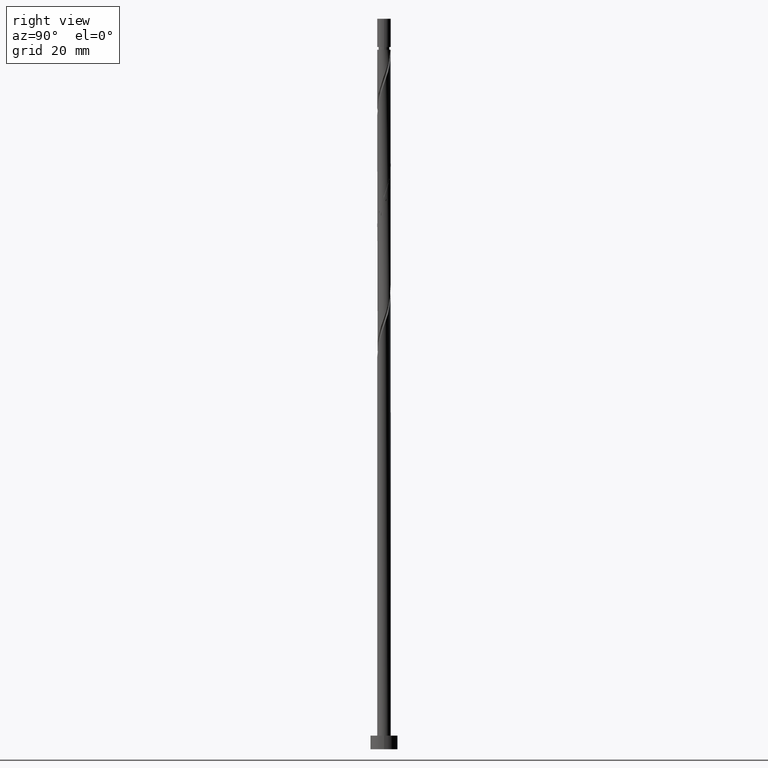
[diagram: clean part render]
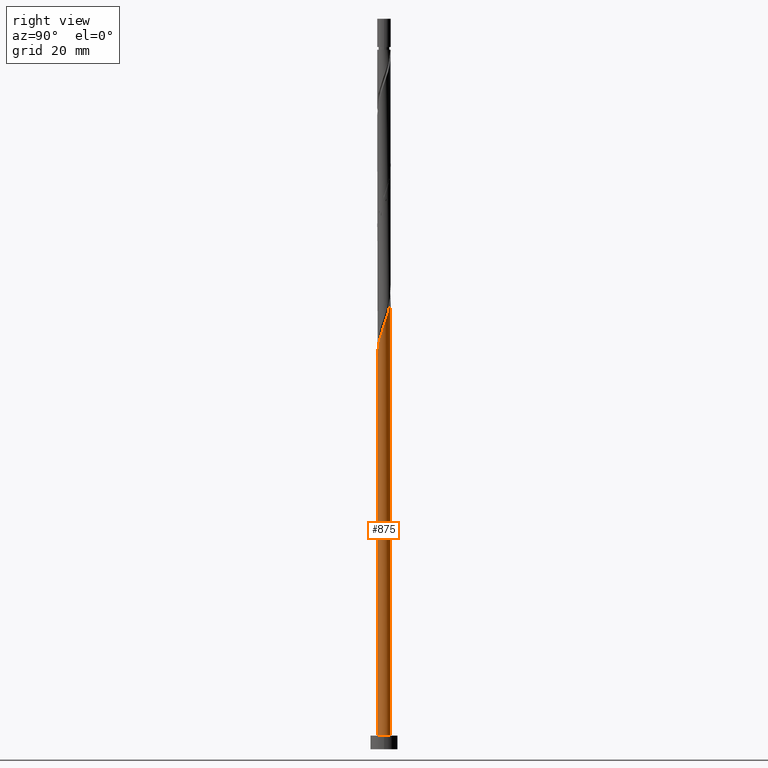
[diagram: same view with one face highlighted and labeled with its STEP entity id]
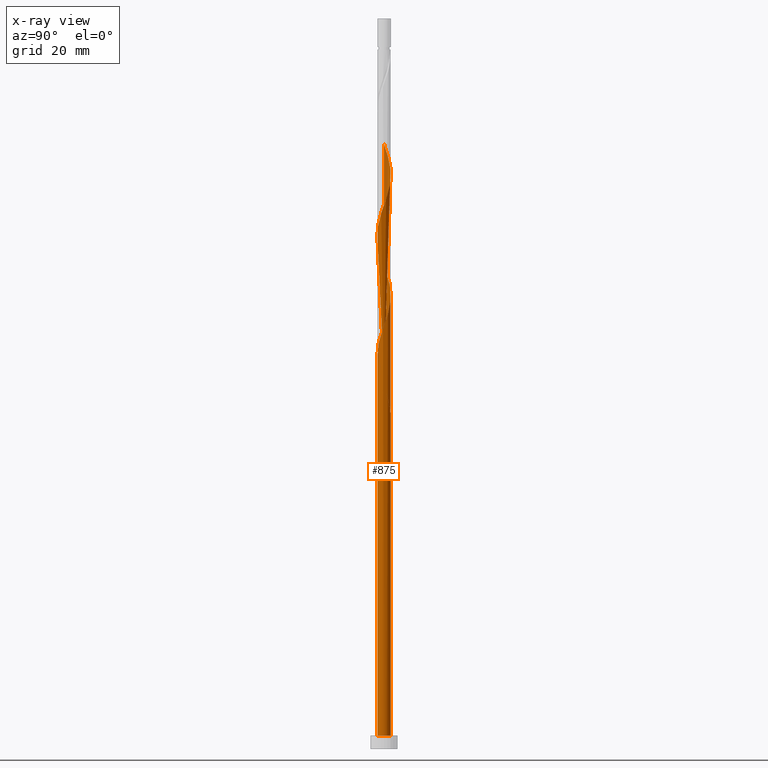
[diagram: x-ray of the same camera — body ghosted, the highlighted face saturated]
A machine part, right view. The second image highlights one B-rep face of the part: STEP entity #875.
The next image is the same camera in x-ray: the body ghosted, the highlighted face saturated — about 0% of this face is hidden behind the body in this view.
In plain terms, the highlighted cylindrical surface (bore or boss wall) has radius 1.5 mm, axis along (-0, -0, -1).
Its self-contained STEP definition (entity closure, byte-faithful):
#17 = EDGE_CURVE ( 'NONE', #938, #1126, #136, .T. ) ;
#25 = CIRCLE ( 'NONE', #214, 1.500000000000000222 ) ;
#33 = DIRECTION ( 'NONE',  ( -1.000000000000000000, 0.000000000000000000, 0.000000000000000000 ) ) ;
#37 = ORIENTED_EDGE ( 'NONE', *, *, #1473, .F. ) ;
#44 = VERTEX_POINT ( 'NONE', #1340 ) ;
#58 = VERTEX_POINT ( 'NONE', #495 ) ;
#60 = CARTESIAN_POINT ( 'NONE',  ( -1.086320624467308038, -1.056607754070166383, 109.9348185488732810 ) ) ;
#61 = CARTESIAN_POINT ( 'NONE',  ( -1.500000000000002887, 0.1717933910776829887, 79.50849502569199956 ) ) ;
#69 = CARTESIAN_POINT ( 'NONE',  ( -0.7446362021362263883, -1.319859602977673019, 111.1469397609944991 ) ) ;
#70 = CARTESIAN_POINT ( 'NONE',  ( -0.7446362021362251671, 1.319859602977671020, 77.20754582160056145 ) ) ;
#82 = CARTESIAN_POINT ( 'NONE',  ( -0.5098503233045978966, 1.427082721123916098, 101.4499700640248108 ) ) ;
#88 = EDGE_CURVE ( 'NONE', #1126, #691, #1029, .T. ) ;
#92 = AXIS2_PLACEMENT_3D ( 'NONE', #1326, #519, #240 ) ;
#93 = CARTESIAN_POINT ( 'NONE',  ( -0.5098503233045978966, 1.427082721123916098, 128.1166367306914822 ) ) ;
#109 = AXIS2_PLACEMENT_3D ( 'NONE', #386, #738, #254 ) ;
#110 = CARTESIAN_POINT ( 'NONE',  ( 1.509919581836498992, -0.1290554202307514498, 119.6317882458429409 ) ) ;
#136 = LINE ( 'NONE', #1104, #1540 ) ;
#142 = ORIENTED_EDGE ( 'NONE', *, *, #597, .F. ) ;
#143 = EDGE_CURVE ( 'NONE', #44, #58, #1372, .T. ) ;
#153 = ORIENTED_EDGE ( 'NONE', *, *, #946, .T. ) ;
#163 = CARTESIAN_POINT ( 'NONE',  ( -1.485116343010915330, -0.3015657354974669024, 107.5105761246308589 ) ) ;
#165 = CARTESIAN_POINT ( 'NONE',  ( -1.412398115979205837, 0.5492212733340116060, 78.41966703372176539 ) ) ;
#171 = CARTESIAN_POINT ( 'NONE',  ( 0.2984962311319867556, -1.470000000000002416, 87.51057612463087310 ) ) ;
#174 = CARTESIAN_POINT ( 'NONE',  ( 0.000000000000000000, 0.000000000000000000, 3.000000000000000000 ) ) ;
#191 = CARTESIAN_POINT ( 'NONE',  ( -0.1277418221353519845, -1.494550777617658754, 86.29845491250966916 ) ) ;
#199 = CARTESIAN_POINT ( 'NONE',  ( -1.509919581836498992, 0.1290554202307515330, 106.2984549125096265 ) ) ;
#208 = CARTESIAN_POINT ( 'NONE',  ( 1.412557076706239645, 0.5046607821568165342, 121.4499700640247966 ) ) ;
#214 = AXIS2_PLACEMENT_3D ( 'NONE', #174, #567, #1045 ) ;
#219 = CARTESIAN_POINT ( 'NONE',  ( 1.485116343010915330, 0.3015657354974667359, 120.8439094579641875 ) ) ;
#225 = CARTESIAN_POINT ( 'NONE',  ( 0.8912534666523075355, -1.225634408494020722, 115.9954246094793433 ) ) ;
#236 = CARTESIAN_POINT ( 'NONE',  ( -1.306425335299755686, 0.7370568792752213438, 131.1469397609944849 ) ) ;
#240 = DIRECTION ( 'NONE',  ( -1.000000000000000000, 0.000000000000000000, 0.000000000000000000 ) ) ;
#254 = DIRECTION ( 'NONE',  ( 1.000000000000000000, 0.000000000000000000, 0.000000000000000000 ) ) ;
#263 = CARTESIAN_POINT ( 'NONE',  ( -1.500000000000000444, 1.757426432660816093E-15, 81.69336393726507595 ) ) ;
#280 = DIRECTION ( 'NONE',  ( -0.000000000000000000, -0.000000000000000000, -1.000000000000000000 ) ) ;
#285 = CARTESIAN_POINT ( 'NONE',  ( -0.9154784133017672687, -1.188233678523920034, 83.87421248826726128 ) ) ;
#290 = CARTESIAN_POINT ( 'NONE',  ( 0.2984962311319869221, 1.469999999999999751, 74.17724279129753029 ) ) ;
#295 = CARTESIAN_POINT ( 'NONE',  ( -1.339997810401563294, -0.7077558288161666100, 108.7226973367520486 ) ) ;
#313 = CARTESIAN_POINT ( 'NONE',  ( 0.9154784133017670467, 1.188233678523920034, 97.20754582160057566 ) ) ;
#316 = CARTESIAN_POINT ( 'NONE',  ( -1.485116343010913109, 0.3015657354974668469, 80.84390945796421590 ) ) ;
#323 = CARTESIAN_POINT ( 'NONE',  ( 0.8912534666523075355, -1.225634408494020722, 89.32875794281267190 ) ) ;
#326 = CARTESIAN_POINT ( 'NONE',  ( -1.213159217434433668, 0.8821817914431653307, 79.02572763978236026 ) ) ;
#333 = CARTESIAN_POINT ( 'NONE',  ( 1.200452554620305756, -0.9248924852164310817, 117.2075458216005330 ) ) ;
#345 = CARTESIAN_POINT ( 'NONE',  ( -0.1277418221353519845, -1.494550777617658754, 112.9651215791763406 ) ) ;
#349 = CARTESIAN_POINT ( 'NONE',  ( -0.8912534666523073135, 1.225634408494020944, 129.3287579428126719 ) ) ;
#362 = VERTEX_POINT ( 'NONE', #919 ) ;
#386 = CARTESIAN_POINT ( 'NONE',  ( 0.000000000000000000, 0.000000000000000000, 3.000000000000000000 ) ) ;
#409 = CARTESIAN_POINT ( 'NONE',  ( -1.412557076706239645, -0.5046607821568167562, 81.44997006402482498 ) ) ;
#419 = CARTESIAN_POINT ( 'NONE',  ( -1.412398115979205837, 0.5492212733340116060, 105.0863337003884368 ) ) ;
#420 = VECTOR ( 'NONE', #1285, 1000.000000000000000 ) ;
#426 = CARTESIAN_POINT ( 'NONE',  ( 1.497517962423707383, 0.08625515763335768471, 93.57118218523692121 ) ) ;
#432 = EDGE_LOOP ( 'NONE', ( #142, #37, #869, #524, #153, #724, #1391, #990, #1027 ) ) ;
#436 = EDGE_CURVE ( 'NONE', #44, #938, #793, .T. ) ;
#445 = CARTESIAN_POINT ( 'NONE',  ( -1.200452554620305978, 0.9248924852164310817, 103.8742124882672186 ) ) ;
#447 = LINE ( 'NONE', #1097, #420 ) ;
#454 = CARTESIAN_POINT ( 'NONE',  ( 0.7446362021362260553, 1.319859602977673019, 124.4802730943278277 ) ) ;
#461 = CARTESIAN_POINT ( 'NONE',  ( -1.500000000000002887, 0.1717933910776834605, 132.8418283590253282 ) ) ;
#495 = CARTESIAN_POINT ( 'NONE',  ( 0.2984962311319869221, 1.469999999999999751, 74.17724279129751608 ) ) ;
#516 =( BOUNDED_CURVE ( )  B_SPLINE_CURVE ( 2, ( #263, #753, #638, #316, #669, #677, #326, #553, #806, #70, #1145, #1157, #1505, #777, #290 ),
 .UNSPECIFIED., .F., .T. ) 
 B_SPLINE_CURVE_WITH_KNOTS ( ( 3, 2, 2, 2, 2, 2, 2, 3 ),
 ( 0.9295252162417512176, 0.9318181818181817677, 0.9431818181818182323, 0.9545454545454545858, 0.9659090909090909394, 0.9772727272727272929, 0.9886363636363636465, 1.000000000000000000 ),
 .UNSPECIFIED. ) 
 CURVE ( )  GEOMETRIC_REPRESENTATION_ITEM ( )  RATIONAL_B_SPLINE_CURVE ( ( 0.9061101570135670080, 0.9072237824201492273, 0.9090909090909268242, 0.8998376744372288405, 0.9090909090909268242, 0.8998376744372288405, 0.9090909090909268242, 0.8998376744372288405, 0.9090909090909268242, 0.8998376744372288405, 0.9090909090909268242, 0.8998376744372288405, 0.9090909090909268242, 0.8998376744372288405, 0.9090909090909268242 ) ) 
 REPRESENTATION_ITEM ( '' )  );
#519 = DIRECTION ( 'NONE',  ( 0.000000000000000000, -0.000000000000000000, -1.000000000000000000 ) ) ;
#524 = ORIENTED_EDGE ( 'NONE', *, *, #88, .T. ) ;
#529 = CARTESIAN_POINT ( 'NONE',  ( -1.045853010636306202, 1.075263446855226235, 76.60148521553993817 ) ) ;
#532 = DIRECTION ( 'NONE',  ( -0.000000000000000000, -0.000000000000000000, -1.000000000000000000 ) ) ;
#542 = CARTESIAN_POINT ( 'NONE',  ( 1.200452554620305756, -0.9248924852164310817, 90.54087915493389005 ) ) ;
#550 = CARTESIAN_POINT ( 'NONE',  ( -0.5436309926831534023, -1.398021939668451008, 111.7530003670551082 ) ) ;
#553 = CARTESIAN_POINT ( 'NONE',  ( -1.086320624467306040, 1.056607754070165717, 78.41966703372176539 ) ) ;
#559 = CARTESIAN_POINT ( 'NONE',  ( -0.3426257832300795281, -1.476184276359228109, 85.69239430644903166 ) ) ;
#565 = CARTESIAN_POINT ( 'NONE',  ( -0.7005518949784527161, 1.326358564808968188, 102.0560306700854056 ) ) ;
#567 = DIRECTION ( 'NONE',  ( 0.000000000000000000, 0.000000000000000000, 1.000000000000000000 ) ) ;
#570 = CARTESIAN_POINT ( 'NONE',  ( 1.045853010636306202, -1.075263446855226235, 116.6014852155399666 ) ) ;
#579 = CARTESIAN_POINT ( 'NONE',  ( -1.412398115979205837, 0.5492212733340116060, 131.7530003670550798 ) ) ;
#584 = CARTESIAN_POINT ( 'NONE',  ( -1.045853010636306202, 1.075263446855226235, 129.9348185488732952 ) ) ;
#590 = CARTESIAN_POINT ( 'NONE',  ( 0.1277418221353521510, 1.494550777617658754, 126.2984549125096549 ) ) ;
#597 = EDGE_CURVE ( 'NONE', #731, #362, #447, .T. ) ;
#638 = CARTESIAN_POINT ( 'NONE',  ( -1.497517962423704718, 0.08625515763335817043, 81.44997006402476813 ) ) ;
#657 = CARTESIAN_POINT ( 'NONE',  ( -1.412557076706239645, -0.5046607821568167562, 108.1166367306914964 ) ) ;
#666 = CARTESIAN_POINT ( 'NONE',  ( 0.5436309926831531802, 1.398021939668451008, 98.41966703372177960 ) ) ;
#669 = CARTESIAN_POINT ( 'NONE',  ( -1.412557076706236980, 0.5046607821568160901, 80.23784885190357841 ) ) ;
#676 = CARTESIAN_POINT ( 'NONE',  ( -0.8912534666523073135, 1.225634408494020944, 75.99542460947932909 ) ) ;
#677 = CARTESIAN_POINT ( 'NONE',  ( -1.339997810401561518, 0.7077558288161657218, 79.63178824584298354 ) ) ;
#683 = CARTESIAN_POINT ( 'NONE',  ( 0.1277418221353521510, 1.494550777617658754, 99.63178824584299775 ) ) ;
#691 = VERTEX_POINT ( 'NONE', #1460 ) ;
#693 = CARTESIAN_POINT ( 'NONE',  ( -1.497517962423707383, -0.08625515763335786512, 106.9045155185702498 ) ) ;
#700 = CARTESIAN_POINT ( 'NONE',  ( 1.086320624467308482, 1.056607754070166161, 123.2681518822065954 ) ) ;
#714 = CARTESIAN_POINT ( 'NONE',  ( 0.5436309926831531802, 1.398021939668451008, 125.0863337003884368 ) ) ;
#724 = ORIENTED_EDGE ( 'NONE', *, *, #17, .F. ) ;
#731 = VERTEX_POINT ( 'NONE', #750 ) ;
#735 =( BOUNDED_CURVE ( )  B_SPLINE_CURVE ( 2, ( #1254, #1013, #1478, #1368, #409, #1400, #1274, #888, #285, #925, #773, #559, #191, #1384, #171, #1037, #915, #323, #789, #542, #1154, #1022, #1165, #1495, #426, #1249, #1501, #1486, #1392, #1172, #313, #1510, #666, #908, #683, #1265, #1141, #82, #565, #803, #1043, #445, #1373, #419, #1284, #199, #693, #163, #657, #295, #1134, #60, #781, #69, #550, #1030, #345, #1323, #1415, #1405, #1084, #225, #570, #333, #954, #1060, #1178, #110, #819, #219, #208, #1305, #838, #700, #1529, #454, #714, #1423, #590, #1428, #934, #93, #812, #349, #584, #832, #236, #579, #1293, #461, #1519 ),
 .UNSPECIFIED., .F., .T. ) 
 B_SPLINE_CURVE_WITH_KNOTS ( ( 3, 2, 2, 2, 2, 2, 2, 2, 2, 2, 2, 2, 2, 2, 2, 2, 2, 2, 2, 2, 2, 2, 2, 2, 2, 2, 2, 2, 2, 2, 2, 2, 2, 2, 2, 2, 2, 2, 2, 2, 2, 2, 2, 2, 2, 3 ),
 ( 0.05452521624175137721, 0.05681818181818176772, 0.06818181818181823228, 0.07954545454545458583, 0.09090909090909093937, 0.1022727272727272929, 0.1136363636363636465, 0.1250000000000000000, 0.1363636363636363535, 0.1477272727272727071, 0.1590909090909090606, 0.1704545454545454142, 0.1818181818181817677, 0.1931818181818182323, 0.2045454545454545858, 0.2159090909090909394, 0.2272727272727272929, 0.2386363636363636465, 0.2500000000000000000, 0.2613636363636363535, 0.2727272727272727071, 0.2840909090909090606, 0.2954545454545454142, 0.3068181818181817677, 0.3181818181818182323, 0.3295454545454545858, 0.3409090909090909394, 0.3522727272727272929, 0.3636363636363636465, 0.3750000000000000000, 0.3863636363636363535, 0.3977272727272727071, 0.4090909090909090606, 0.4204545454545454142, 0.4318181818181817677, 0.4431818181818182323, 0.4545454545454545858, 0.4659090909090909394, 0.4772727272727272929, 0.4886363636363636465, 0.5000000000000000000, 0.5113636363636363535, 0.5227272727272727071, 0.5340909090909091717, 0.5454545454545454142, 0.5545252162417514397 ),
 .UNSPECIFIED. ) 
 CURVE ( )  GEOMETRIC_REPRESENTATION_ITEM ( )  RATIONAL_B_SPLINE_CURVE ( ( 0.9061101570135737804, 0.9072237824201559997, 0.9090909090909334855, 0.8998376744372357239, 0.9090909090909334855, 0.8998376744372357239, 0.9090909090909334855, 0.8998376744372357239, 0.9090909090909334855, 0.8998376744372357239, 0.9090909090909334855, 0.8998376744372357239, 0.9090909090909334855, 0.8998376744372357239, 0.9090909090909334855, 0.8998376744372357239, 0.9090909090909334855, 0.8998376744372357239, 0.9090909090909334855, 0.8998376744372357239, 0.9090909090909334855, 0.8998376744372357239, 0.9090909090909334855, 0.8998376744372357239, 0.9090909090909334855, 0.8998376744372357239, 0.9090909090909334855, 0.8998376744372357239, 0.9090909090909334855, 0.8998376744372357239, 0.9090909090909334855, 0.8998376744372357239, 0.9090909090909334855, 0.8998376744372357239, 0.9090909090909334855, 0.8998376744372357239, 0.9090909090909334855, 0.8998376744372357239, 0.9090909090909334855, 0.8998376744372357239, 0.9090909090909334855, 0.8998376744372357239, 0.9090909090909334855, 0.8998376744372357239, 0.9090909090909334855, 0.8998376744372357239, 0.9090909090909334855, 0.8998376744372357239, 0.9090909090909334855, 0.8998376744372357239, 0.9090909090909334855, 0.8998376744372357239, 0.9090909090909334855, 0.8998376744372357239, 0.9090909090909334855, 0.8998376744372357239, 0.9090909090909334855, 0.8998376744372357239, 0.9090909090909334855, 0.8998376744372357239, 0.9090909090909334855, 0.8998376744372357239, 0.9090909090909334855, 0.8998376744372357239, 0.9090909090909334855, 0.8998376744372357239, 0.9090909090909334855, 0.8998376744372357239, 0.9090909090909334855, 0.8998376744372357239, 0.9090909090909334855, 0.8998376744372357239, 0.9090909090909334855, 0.8998376744372357239, 0.9090909090909334855, 0.8998376744372357239, 0.9090909090909334855, 0.8998376744372357239, 0.9090909090909334855, 0.8998376744372357239, 0.9090909090909334855, 0.8998376744372357239, 0.9090909090909334855, 0.8998376744372357239, 0.9090909090909334855, 0.8998376744372357239, 0.9090909090909334855, 0.8998376744372357239, 0.9090909090909334855, 0.9017048011080132097, 0.9061101570135737804 ) ) 
 REPRESENTATION_ITEM ( '' )  );
#738 = DIRECTION ( 'NONE',  ( 0.000000000000000000, 0.000000000000000000, 1.000000000000000000 ) ) ;
#739 = CYLINDRICAL_SURFACE ( 'NONE', #901, 1.500000000000000222 ) ;
#750 = CARTESIAN_POINT ( 'NONE',  ( -1.500000000000002442, 7.702762662300539942E-16, 133.3277883119966134 ) ) ;
#753 = CARTESIAN_POINT ( 'NONE',  ( -1.500000000000000000, 0.04316328978573275021, 81.57126593254685076 ) ) ;
#773 = CARTESIAN_POINT ( 'NONE',  ( -0.5436309926831534023, -1.398021939668451008, 85.08633370038840837 ) ) ;
#776 = CARTESIAN_POINT ( 'NONE',  ( -0.5098503233045978966, 1.427082721123916098, 74.78330339735811094 ) ) ;
#777 = CARTESIAN_POINT ( 'NONE',  ( 0.08714213895937576726, 1.512917278876086069, 74.78330339735811094 ) ) ;
#781 = CARTESIAN_POINT ( 'NONE',  ( -0.9154784133017672687, -1.188233678523920034, 110.5408791549339043 ) ) ;
#789 = CARTESIAN_POINT ( 'NONE',  ( 1.045853010636306202, -1.075263446855226235, 89.93481854887329519 ) ) ;
#793 =( BOUNDED_CURVE ( )  B_SPLINE_CURVE ( 2, ( #1266, #776, #1375, #676, #529, #1255, #1130, #165, #1007, #61, #1472 ),
 .UNSPECIFIED., .F., .T. ) 
 B_SPLINE_CURVE_WITH_KNOTS ( ( 3, 2, 2, 2, 2, 3 ),
 ( 0.000000000000000000, 0.01136363636363635354, 0.02272727272727270709, 0.03409090909090906063, 0.04545454545454541417, 0.05452521624175137721 ),
 .UNSPECIFIED. ) 
 CURVE ( )  GEOMETRIC_REPRESENTATION_ITEM ( )  RATIONAL_B_SPLINE_CURVE ( ( 0.9090909090909334855, 0.8998376744372357239, 0.9090909090909334855, 0.8998376744372357239, 0.9090909090909334855, 0.8998376744372357239, 0.9090909090909334855, 0.8998376744372357239, 0.9090909090909334855, 0.9017048011080132097, 0.9061101570135737804 ) ) 
 REPRESENTATION_ITEM ( '' )  );
#803 = CARTESIAN_POINT ( 'NONE',  ( -0.8912534666523073135, 1.225634408494020944, 102.6620912761460005 ) ) ;
#806 = CARTESIAN_POINT ( 'NONE',  ( -0.9154784133017651593, 1.188233678523918035, 77.81360642766115632 ) ) ;
#812 = CARTESIAN_POINT ( 'NONE',  ( -0.7005518949784527161, 1.326358564808968188, 128.7226973367521055 ) ) ;
#819 = CARTESIAN_POINT ( 'NONE',  ( 1.497517962423707383, 0.08625515763335768471, 120.2378488519035926 ) ) ;
#832 = CARTESIAN_POINT ( 'NONE',  ( -1.200452554620305978, 0.9248924852164310817, 130.5408791549338900 ) ) ;
#838 = CARTESIAN_POINT ( 'NONE',  ( 1.213159217434436110, 0.8821817914431661078, 122.6620912761460005 ) ) ;
#849 = CARTESIAN_POINT ( 'NONE',  ( -1.500000000000000222, 0.000000000000000000, 3.000000000000000000 ) ) ;
#869 = ORIENTED_EDGE ( 'NONE', *, *, #17, .T. ) ;
#875 = ADVANCED_FACE ( 'NONE', ( #1242 ), #739, .T. ) ;
#888 = CARTESIAN_POINT ( 'NONE',  ( -1.086320624467308038, -1.056607754070166383, 83.26815188220656694 ) ) ;
#895 = EDGE_CURVE ( 'NONE', #362, #58, #516, .T. ) ;
#901 = AXIS2_PLACEMENT_3D ( 'NONE', #1356, #280, #33 ) ;
#908 = CARTESIAN_POINT ( 'NONE',  ( 0.3426257832300796946, 1.476184276359228109, 99.02572763978238868 ) ) ;
#915 = CARTESIAN_POINT ( 'NONE',  ( 0.7005518949784523830, -1.326358564808968632, 88.72269733675207704 ) ) ;
#919 = CARTESIAN_POINT ( 'NONE',  ( -1.500000000000000444, 1.757426432660816093E-15, 81.69336393726507595 ) ) ;
#925 = CARTESIAN_POINT ( 'NONE',  ( -0.7446362021362263883, -1.319859602977673019, 84.48027309432779930 ) ) ;
#934 = CARTESIAN_POINT ( 'NONE',  ( -0.2984962311319864781, 1.470000000000002416, 127.5105761246308731 ) ) ;
#938 = VERTEX_POINT ( 'NONE', #1267 ) ;
#946 = EDGE_CURVE ( 'NONE', #691, #1126, #25, .T. ) ;
#954 = CARTESIAN_POINT ( 'NONE',  ( 1.306425335299755464, -0.7370568792752213438, 117.8136064276611705 ) ) ;
#990 = ORIENTED_EDGE ( 'NONE', *, *, #143, .T. ) ;
#1007 = CARTESIAN_POINT ( 'NONE',  ( -1.461158848907852637, 0.3391383467823815279, 79.02572763978236026 ) ) ;
#1013 = CARTESIAN_POINT ( 'NONE',  ( -1.500000000000002665, -0.04316328978573540087, 80.11655298338149578 ) ) ;
#1022 = CARTESIAN_POINT ( 'NONE',  ( 1.412398115979206503, -0.5492212733340109398, 91.75300036705506557 ) ) ;
#1027 = ORIENTED_EDGE ( 'NONE', *, *, #895, .F. ) ;
#1029 = CIRCLE ( 'NONE', #109, 1.500000000000000222 ) ;
#1030 = CARTESIAN_POINT ( 'NONE',  ( -0.3426257832300795281, -1.476184276359228109, 112.3590609731156889 ) ) ;
#1037 = CARTESIAN_POINT ( 'NONE',  ( 0.5098503233045976746, -1.427082721123916320, 88.11663673069148217 ) ) ;
#1043 = CARTESIAN_POINT ( 'NONE',  ( -1.045853010636306202, 1.075263446855226235, 103.2681518822066238 ) ) ;
#1045 = DIRECTION ( 'NONE',  ( 1.000000000000000000, 0.000000000000000000, 0.000000000000000000 ) ) ;
#1060 = CARTESIAN_POINT ( 'NONE',  ( 1.412398115979206503, -0.5492212733340109398, 118.4196670337217512 ) ) ;
#1084 = CARTESIAN_POINT ( 'NONE',  ( 0.7005518949784523830, -1.326358564808968632, 115.3893640034187484 ) ) ;
#1097 = CARTESIAN_POINT ( 'NONE',  ( -1.500000000000000222, 0.000000000000000000, 161.0000000000000000 ) ) ;
#1104 = CARTESIAN_POINT ( 'NONE',  ( -1.500000000000000222, 0.000000000000000000, 161.0000000000000000 ) ) ;
#1126 = VERTEX_POINT ( 'NONE', #849 ) ;
#1130 = CARTESIAN_POINT ( 'NONE',  ( -1.306425335299755686, 0.7370568792752213438, 77.81360642766117053 ) ) ;
#1134 = CARTESIAN_POINT ( 'NONE',  ( -1.213159217434436110, -0.8821817914431666630, 109.3287579428126577 ) ) ;
#1141 = CARTESIAN_POINT ( 'NONE',  ( -0.2984962311319864781, 1.470000000000002416, 100.8439094579641875 ) ) ;
#1145 = CARTESIAN_POINT ( 'NONE',  ( -0.5436309926831520700, 1.398021939668448566, 76.60148521553992396 ) ) ;
#1154 = CARTESIAN_POINT ( 'NONE',  ( 1.306425335299755464, -0.7370568792752213438, 91.14693976099449912 ) ) ;
#1157 = CARTESIAN_POINT ( 'NONE',  ( -0.3426257832300788064, 1.476184276359225889, 75.99542460947934330 ) ) ;
#1165 = CARTESIAN_POINT ( 'NONE',  ( 1.461158848907852859, -0.3391383467823813058, 92.35906097311570306 ) ) ;
#1172 = CARTESIAN_POINT ( 'NONE',  ( 1.086320624467308482, 1.056607754070166161, 96.60148521553993817 ) ) ;
#1178 = CARTESIAN_POINT ( 'NONE',  ( 1.461158848907852859, -0.3391383467823813058, 119.0257276397823460 ) ) ;
#1242 = FACE_OUTER_BOUND ( 'NONE', #432, .T. ) ;
#1249 = CARTESIAN_POINT ( 'NONE',  ( 1.485116343010915330, 0.3015657354974667359, 94.17724279129753029 ) ) ;
#1254 = CARTESIAN_POINT ( 'NONE',  ( -1.500000000000002442, -1.316200221907664786E-15, 79.99445497866329902 ) ) ;
#1255 = CARTESIAN_POINT ( 'NONE',  ( -1.200452554620305978, 0.9248924852164310817, 77.20754582160054724 ) ) ;
#1265 = CARTESIAN_POINT ( 'NONE',  ( -0.08714213895937542032, 1.512917278876088512, 100.2378488519035784 ) ) ;
#1266 = CARTESIAN_POINT ( 'NONE',  ( -0.2984962311319864225, 1.470000000000002416, 74.17724279129751608 ) ) ;
#1267 = CARTESIAN_POINT ( 'NONE',  ( -1.500000000000002442, -1.316200221907664786E-15, 79.99445497866329902 ) ) ;
#1274 = CARTESIAN_POINT ( 'NONE',  ( -1.213159217434436110, -0.8821817914431666630, 82.66209127614600050 ) ) ;
#1284 = CARTESIAN_POINT ( 'NONE',  ( -1.461158848907852637, 0.3391383467823815279, 105.6923943064490459 ) ) ;
#1285 = DIRECTION ( 'NONE',  ( -0.000000000000000000, -0.000000000000000000, -1.000000000000000000 ) ) ;
#1293 = CARTESIAN_POINT ( 'NONE',  ( -1.461158848907852637, 0.3391383467823815279, 132.3590609731157315 ) ) ;
#1305 = CARTESIAN_POINT ( 'NONE',  ( 1.339997810401563738, 0.7077558288161661659, 122.0560306700854198 ) ) ;
#1323 = CARTESIAN_POINT ( 'NONE',  ( 0.08714213895937560073, -1.512917278876088512, 113.5711821852368928 ) ) ;
#1326 = CARTESIAN_POINT ( 'NONE',  ( 0.000000000000000000, 0.000000000000000000, 74.17724279129753029 ) ) ;
#1340 = CARTESIAN_POINT ( 'NONE',  ( -0.2984962311319864225, 1.470000000000002416, 74.17724279129751608 ) ) ;
#1356 = CARTESIAN_POINT ( 'NONE',  ( 0.000000000000000000, 0.000000000000000000, 161.0000000000000000 ) ) ;
#1368 = CARTESIAN_POINT ( 'NONE',  ( -1.485116343010915330, -0.3015657354974669024, 80.84390945796418748 ) ) ;
#1372 = CIRCLE ( 'NONE', #92, 1.500000000000000222 ) ;
#1373 = CARTESIAN_POINT ( 'NONE',  ( -1.306425335299755686, 0.7370568792752213438, 104.4802730943278419 ) ) ;
#1375 = CARTESIAN_POINT ( 'NONE',  ( -0.7005518949784527161, 1.326358564808968188, 75.38936400341873423 ) ) ;
#1384 = CARTESIAN_POINT ( 'NONE',  ( 0.08714213895937560073, -1.512917278876088512, 86.90451551857024981 ) ) ;
#1391 = ORIENTED_EDGE ( 'NONE', *, *, #436, .F. ) ;
#1392 = CARTESIAN_POINT ( 'NONE',  ( 1.213159217434436110, 0.8821817914431661078, 95.99542460947934330 ) ) ;
#1400 = CARTESIAN_POINT ( 'NONE',  ( -1.339997810401563294, -0.7077558288161666100, 82.05603067008537721 ) ) ;
#1405 = CARTESIAN_POINT ( 'NONE',  ( 0.5098503233045976746, -1.427082721123916320, 114.7833033973581109 ) ) ;
#1415 = CARTESIAN_POINT ( 'NONE',  ( 0.2984962311319867556, -1.470000000000002416, 114.1772427912975303 ) ) ;
#1423 = CARTESIAN_POINT ( 'NONE',  ( 0.3426257832300796946, 1.476184276359228109, 125.6923943064490459 ) ) ;
#1428 = CARTESIAN_POINT ( 'NONE',  ( -0.08714213895937542032, 1.512917278876088512, 126.9045155185702072 ) ) ;
#1460 = CARTESIAN_POINT ( 'NONE',  ( 1.500000000000000222, 0.000000000000000000, 3.000000000000000000 ) ) ;
#1472 = CARTESIAN_POINT ( 'NONE',  ( -1.500000000000002442, -1.316200221907664786E-15, 79.99445497866329902 ) ) ;
#1473 = EDGE_CURVE ( 'NONE', #938, #731, #735, .T. ) ;
#1478 = CARTESIAN_POINT ( 'NONE',  ( -1.497517962423707383, -0.08625515763335786512, 80.23784885190357841 ) ) ;
#1486 = CARTESIAN_POINT ( 'NONE',  ( 1.339997810401563738, 0.7077558288161661659, 95.38936400341874844 ) ) ;
#1495 = CARTESIAN_POINT ( 'NONE',  ( 1.509919581836498992, -0.1290554202307514498, 92.96512157917626951 ) ) ;
#1501 = CARTESIAN_POINT ( 'NONE',  ( 1.412557076706239645, 0.5046607821568165342, 94.78330339735815357 ) ) ;
#1505 = CARTESIAN_POINT ( 'NONE',  ( -0.1277418221353515404, 1.494550777617655868, 75.38936400341870581 ) ) ;
#1510 = CARTESIAN_POINT ( 'NONE',  ( 0.7446362021362260553, 1.319859602977673019, 97.81360642766117053 ) ) ;
#1519 = CARTESIAN_POINT ( 'NONE',  ( -1.500000000000002442, 7.702762662300539942E-16, 133.3277883119966134 ) ) ;
#1529 = CARTESIAN_POINT ( 'NONE',  ( 0.9154784133017670467, 1.188233678523920034, 123.8742124882672329 ) ) ;
#1540 = VECTOR ( 'NONE', #532, 1000.000000000000000 ) ;